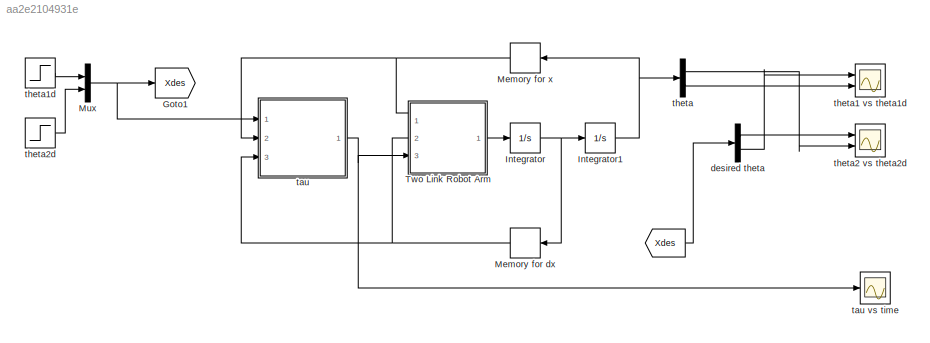
MODEL slx_aa2e2104931e
KIND model
CONFIG AbsTol = auto
CONFIG EnableMultiTasking = off
CONFIG FixedStep = 0.01
CONFIG MaxStep = auto
CONFIG MinStep = auto
CONFIG RelTol = 1e-3
CONFIG SampleTimeConstraint = Unconstrained
CONFIG SolverName = FixedStepAuto
CONFIG StartTime = 0.0
CONFIG StopTime = 3
BLOCK [From]  
  GotoTag = Xdes
  TagVisibility = global
BLOCK [Goto] Goto1
  GotoTag = Xdes
  TagVisibility = global
BLOCK [Integrator] Integrator
  InitialCondition = [0 0]
  Ports = [1, 1]
BLOCK [Integrator] Integrator1
  InitialCondition = [pi/2 -pi/2]
  Ports = [1, 1]
BLOCK [Memory] Memory for dx
  InitialCondition = [0 0]
  NameLocation = top
BLOCK [Memory] Memory for x
  InitialCondition = [pi/2 -pi/2]
  NameLocation = top
BLOCK [Mux] Mux
  DisplayOption = bar
  Inputs = 2
  Ports = [2, 1]
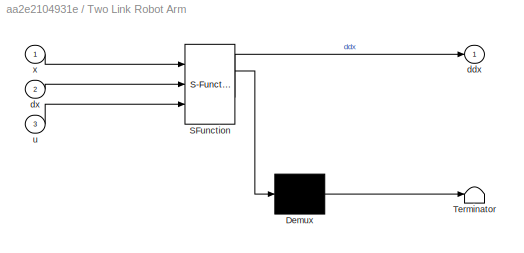
BLOCK [SubSystem] Two Link Robot Arm
  ErrorFcn = Stateflow.Translate.translate
  PermitHierarchicalResolution = ExplicitOnly
  Ports = [3, 1]
  RequestExecContextInheritance = off
  SFBlockType = MATLAB Function
  TreatAsAtomicUnit = on
BLOCK [Demux] Two Link Robot Arm/ Demux 
  Outputs = 1
  Ports = [1, 1]
BLOCK [S-Function] Two Link Robot Arm/ SFunction 
  EnableBusSupport = on
  FunctionName = sf_sfun
  PortCounts = [3 2]
  Ports = [3, 2]
  SFcnIsStateOwnerBlock = off
  SFunctionDeploymentMode = off
  Tag = Stateflow S-Function 2
BLOCK [Terminator] Two Link Robot Arm/ Terminator 
BLOCK [Outport] Two Link Robot Arm/ddx
BLOCK [Inport] Two Link Robot Arm/dx
  Port = 2
BLOCK [Inport] Two Link Robot Arm/u
  Port = 3
BLOCK [Inport] Two Link Robot Arm/x
BLOCK [Demux] desired theta
  Outputs = 2
  Ports = [1, 2]
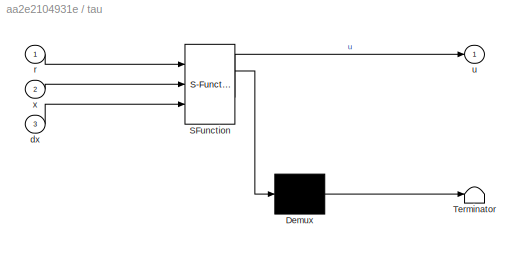
BLOCK [SubSystem] tau
  ErrorFcn = Stateflow.Translate.translate
  PermitHierarchicalResolution = ExplicitOnly
  Ports = [3, 1]
  RequestExecContextInheritance = off
  SFBlockType = MATLAB Function
  TreatAsAtomicUnit = on
BLOCK [Scope] tau vs time
  Floating = off
  NumInputPorts = 1
  Ports = [1]
  ScopeSpecificationString = Simulink.scopes.TimeScopeBlockCfg('CurrentConfiguration', extmgr.ConfigurationSet(extmgr.Configuration('Core','General UI',true),extmgr.Configuration('Core','Source UI',true),extmgr.Configuration('Sources','WiredSimulink',true,'DataLoggingVariableName','ScopeData1'),extmgr.Configuration('Visuals','Time Domain',true,'SerializedDisplays',{struct('MinYLimReal','-31.59103','MaxYLimReal','37.52574','YL...<+1458ch>
BLOCK [Demux] tau/ Demux 
  Outputs = 1
  Ports = [1, 1]
BLOCK [S-Function] tau/ SFunction 
  EnableBusSupport = on
  FunctionName = sf_sfun
  PortCounts = [3 2]
  Ports = [3, 2]
  SFcnIsStateOwnerBlock = off
  SFunctionDeploymentMode = off
  Tag = Stateflow S-Function 3
BLOCK [Terminator] tau/ Terminator 
BLOCK [Inport] tau/dx
  Port = 3
BLOCK [Inport] tau/r
BLOCK [Outport] tau/u
BLOCK [Inport] tau/x
  Port = 2
BLOCK [Demux] theta
  Outputs = 2
  Ports = [1, 2]
BLOCK [Scope] theta1 vs theta1d
  Floating = off
  NumInputPorts = 2
  Ports = [2]
  ScopeSpecificationString = Simulink.scopes.TimeScopeBlockCfg('CurrentConfiguration', extmgr.ConfigurationSet(extmgr.Configuration('Core','General UI',true),extmgr.Configuration('Core','Source UI',true),extmgr.Configuration('Sources','WiredSimulink',true,'DataLoggingVariableName','ScopeData2'),extmgr.Configuration('Visuals','Time Domain',true,'SerializedDisplays',{struct('MinYLimReal','-1.77569','MaxYLimReal','0.27321','YLab...<+1418ch>
BLOCK [Step] theta1d
  After = 0
  SampleTime = 0
  Time = 0
BLOCK [Scope] theta2 vs theta2d
  Floating = off
  NumInputPorts = 2
  Ports = [2]
  ScopeSpecificationString = Simulink.scopes.TimeScopeBlockCfg('CurrentConfiguration', extmgr.ConfigurationSet(extmgr.Configuration('Core','General UI',true),extmgr.Configuration('Core','Source UI',true),extmgr.Configuration('Sources','WiredSimulink',true),extmgr.Configuration('Visuals','Time Domain',true,'SerializedDisplays',{struct('MinYLimReal','-0.27321','MaxYLimReal','1.77569','YLabelReal','theta1 and theta1d','MinYLimMa...<+1455ch>
BLOCK [Step] theta2d
  After = 0
  SampleTime = 0
  Time = 0
LINE  :1 -> desired theta:1
NET Integrator1:1 -> Memory for x:1, theta:1
NET Integrator:1 -> Integrator1:1, Memory for dx:1
NET Memory for dx:1 -> Two Link Robot Arm:2, tau:3
NET Memory for x:1 -> Two Link Robot Arm:1, tau:2
NET Mux:1 -> Goto1:1, tau:1
LINE Two Link Robot Arm:1 -> Integrator:1
LINE desired theta:1 -> theta2 vs theta2d:1
LINE desired theta:2 -> theta1 vs theta1d:1
NET tau:1 -> Two Link Robot Arm:3, tau vs time:1
LINE theta1d:1 -> Mux:1
LINE theta2d:1 -> Mux:2
LINE theta:1 -> theta2 vs theta2d:2
LINE theta:2 -> theta1 vs theta1d:2
note: NET lines group one-source signal fan-out (src -> all destinations, sorted); 1:1 wires keep LINE
CHART Two Link Robot Arm states=1 transitions=1
  STATE_LABEL 'eML_blk_kernel()'
  STATE_LABEL 'SCRIPT:\nfunction ddx = fcn(x,dx,u)\n\nM1 = 1;\nM2 = 1;\nL1 = 1;\nL2 = 1;\ng = 9.81;\nG = [-(M1+M2)*g*L1-M2*g*L2*sin(x(1)+x(2));...\n    -M2*g*L2*sin(x(1)+x(2));];\nC = [M1*L1*L2*(2*dx(1)*dx(2) + dx(1)^2)*sin(x(2));...\n    -M2*L1*L2*dx(1)*dx(2)*sin(x(2));];\nM = [-(M1+M2)*L1^2 + M2*L2^2 + 2*M2*L1*L2*cos(x(2)), M2*L2^2 + M2*L1*L2*cos(x(2));...\n     M2*L2^2 + M2*L1*L2*cos(x(2)),  M2*L2^2;];\nddx = inv(M)*(-C-G+...<+4ch>'
CHART tau states=1 transitions=1
  STATE_LABEL 'eML_blk_kernel()'
  STATE_LABEL 'SCRIPT:\nfunction u  = fcn(r,x,dx)\n%r is the reference angle r(1) = -pi/3 and r(2)=pi/3\nk1 = 15.99;\nk2 = 5.65;\nk3 = k1;\nv = [k3*r(1) - k1*x(1) - k2*dx(1);...\n     (k3*r(2) - k1*x(2) - k2*dx(2));];\nM1 = 1;\nM2 = 1;\nL1 = 1;\nL2 = 1;\ng = 9.81;\nG = [-(M1+M2)*g*L1-M2*g*L2*sin(x(1)+x(2));...\n    -M2*g*L2*sin(x(1)+x(2));]; %gravitational \nC = [M1*L1*L2*(2*dx(1)*dx(2) + dx(1)^2)*sin(x(2));...\n    -M2*L1*L2*d...<+249ch>'
CHART  states=0 transitions=0
CHART  states=0 transitions=0
